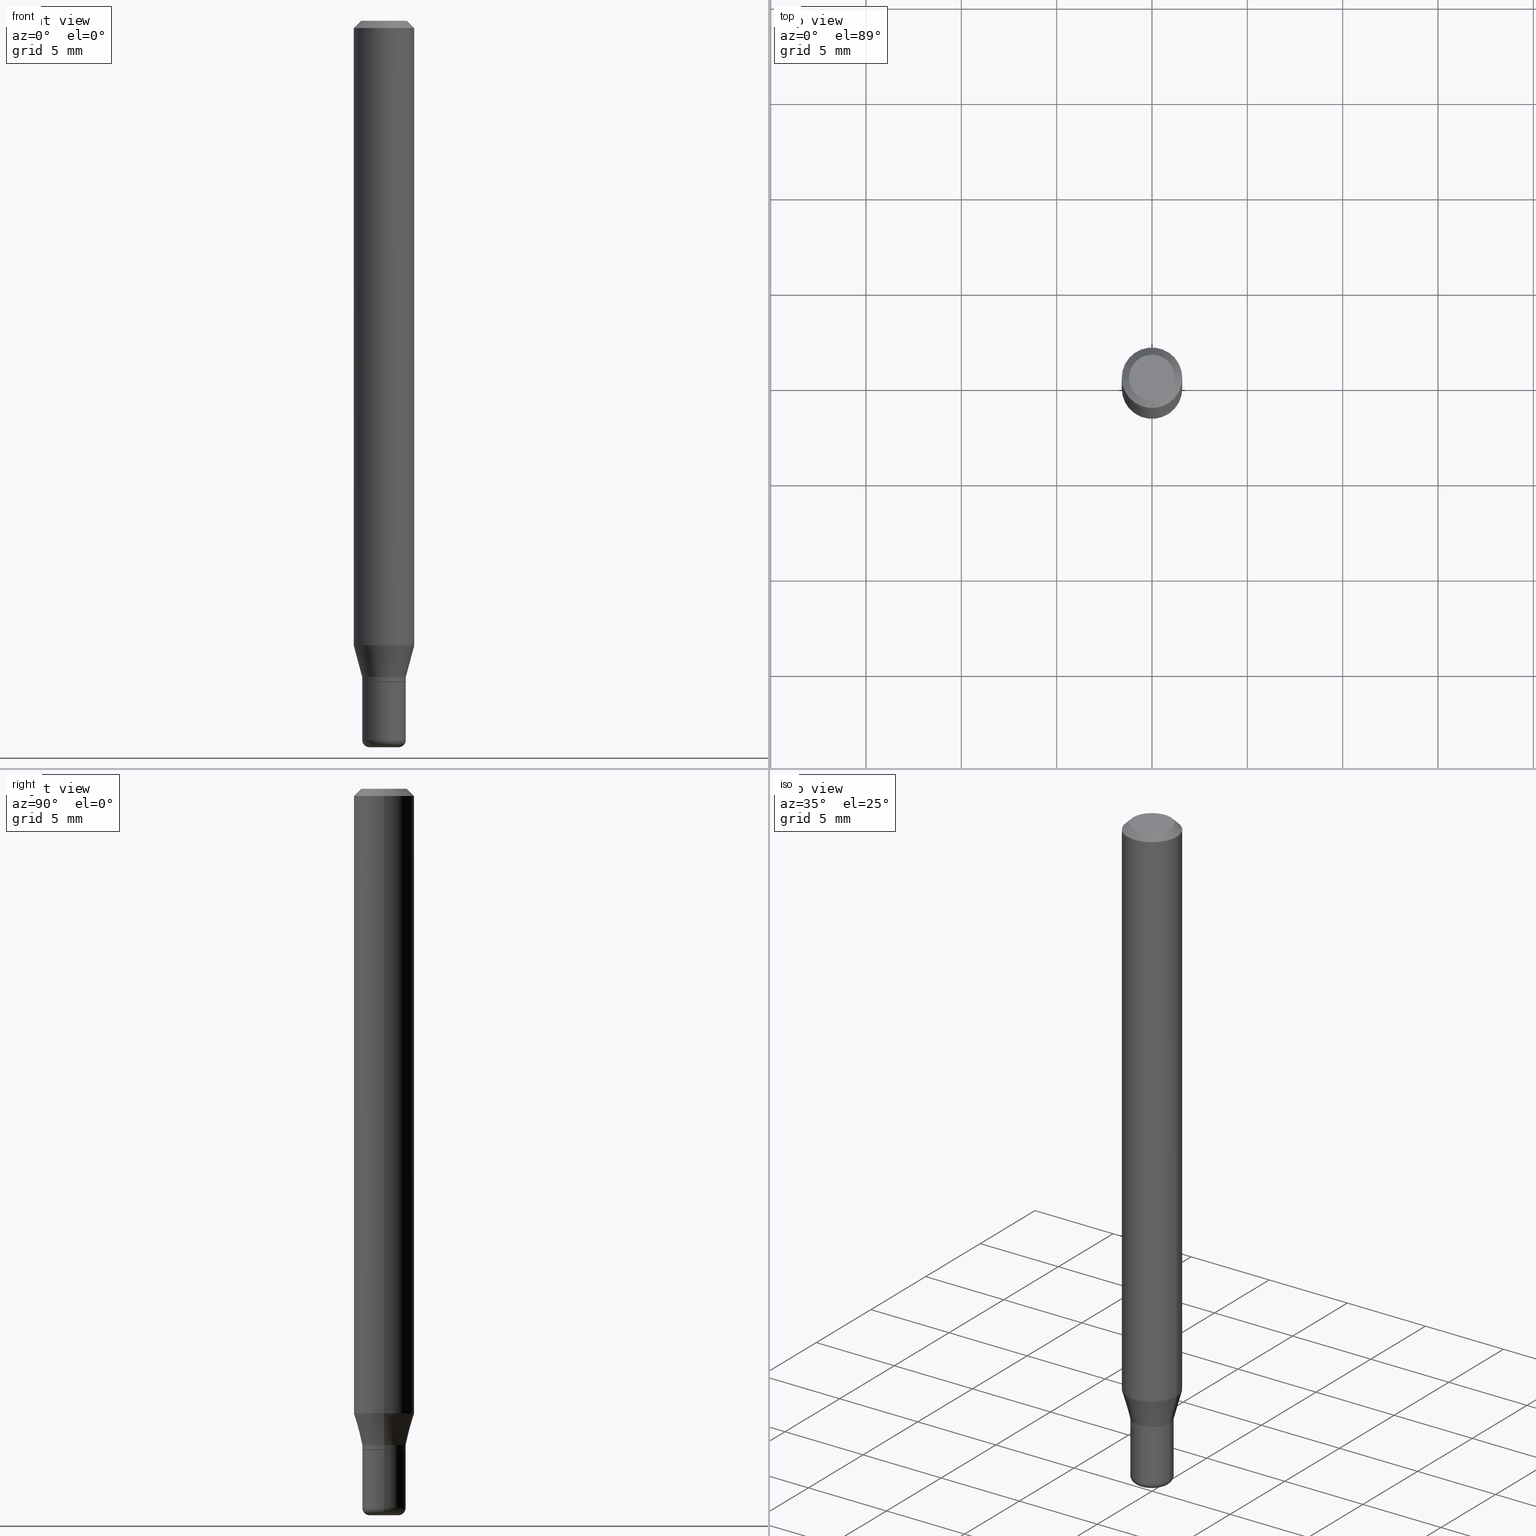
[diagram: canonical four-view strip — front | top / right | iso, engineering-drawing reading convention]
A machine part, canonical four-view strip (front | top / right | iso — engineering-drawing reading convention). The complete STEP part file that produces these views, byte-faithful:
ISO-10303-21;
HEADER;
FILE_DESCRIPTION (( 'STEP AP203' ),
    '1' );
FILE_NAME ('09064.STEP',
    '2024-02-29T21:45:32',
    ( '' ),
    ( '' ),
    'SwSTEP 2.0',
    'SolidWorks 2023',
    '' );
FILE_SCHEMA (( 'CONFIG_CONTROL_DESIGN' ));
ENDSEC;

DATA;
#1 = EDGE_CURVE ( 'NONE', #494, #511, #70, .T. ) ;
#2 = DIRECTION ( 'NONE',  ( -2.445468806185136597E-29, 3.491481338843145583E-15, 1.000000000000000000 ) ) ;
#3 = DIRECTION ( 'NONE',  ( 1.000000000000000000, -6.982962677686274599E-15, 0.000000000000000000 ) ) ;
#4 = CARTESIAN_POINT ( 'NONE',  ( -6.680649051745406845E-45, 9.538196290434862081E-31, 2.731847993664263218E-16 ) ) ;
#5 = LINE ( 'NONE', #478, #329 ) ;
#6 = CIRCLE ( 'NONE', #260, 0.01499999999999998557 ) ;
#7 = CC_DESIGN_APPROVAL ( #154, ( #293 ) ) ;
#8 = DIRECTION ( 'NONE',  ( 1.000000000000000000, -6.982962677686266711E-15, 0.000000000000000000 ) ) ;
#9 = CARTESIAN_POINT ( 'NONE',  ( 0.000000000000000000, 0.000000000000000000, 0.000000000000000000 ) ) ;
#10 = DIRECTION ( 'NONE',  ( -2.445468806185136877E-29, 3.491481338843145188E-15, 1.000000000000000000 ) ) ;
#11 = CC_DESIGN_PERSON_AND_ORGANIZATION_ASSIGNMENT ( #471, #350, ( #293 ) ) ;
#12 = TOROIDAL_SURFACE ( 'NONE', #514, 0.02999999999999999542, 0.01499999999999998904 ) ;
#13 = LENGTH_MEASURE_WITH_UNIT ( LENGTH_MEASURE( 0.02539999999999999897 ), #286 );
#14 = DIRECTION ( 'NONE',  ( 1.000000000000000000, -6.982962677686269077E-15, 0.000000000000000000 ) ) ;
#15 = APPLICATION_PROTOCOL_DEFINITION ( 'international standard', 'config_control_design', 1994, #138 ) ;
#16 = EDGE_CURVE ( 'NONE', #386, #494, #325, .T. ) ;
#17 = ORIENTED_EDGE ( 'NONE', *, *, #481, .T. ) ;
#18 = ORIENTED_EDGE ( 'NONE', *, *, #229, .F. ) ;
#19 = PLANE ( 'NONE',  #394 ) ;
#20 = CC_DESIGN_PERSON_AND_ORGANIZATION_ASSIGNMENT ( #302, #180, ( #58 ) ) ;
#21 = CALENDAR_DATE ( 2024, 29, 2 ) ;
#22 = FACE_OUTER_BOUND ( 'NONE', #112, .T. ) ;
#23 = CIRCLE ( 'NONE', #88, 0.06250000000000000000 ) ;
#24 = DIRECTION ( 'NONE',  ( -2.445468806185136597E-29, 3.491481338843145583E-15, 1.000000000000000000 ) ) ;
#25 = CIRCLE ( 'NONE', #385, 0.04499999999999998446 ) ;
#26 = DATE_TIME_ROLE ( 'classification_date' ) ;
#27 = ORIENTED_EDGE ( 'NONE', *, *, #273, .F. ) ;
#28 = CARTESIAN_POINT ( 'NONE',  ( 3.338064920442711836E-29, -4.765872027520893280E-15, -1.364999999999999991 ) ) ;
#29 = DIRECTION ( 'NONE',  ( -2.445468806185136597E-29, 3.491481338843145583E-15, 1.000000000000000000 ) ) ;
#30 = CALENDAR_DATE ( 2024, 29, 2 ) ;
#31 = DIRECTION ( 'NONE',  ( 1.000000000000000000, -6.982962677686265922E-15, 4.876176775795935793E-29 ) ) ;
#32 = ORIENTED_EDGE ( 'NONE', *, *, #281, .F. ) ;
#33 = LINE ( 'NONE', #466, #366 ) ;
#34 = AXIS2_PLACEMENT_3D ( 'NONE', #429, #270, #186 ) ;
#35 = APPROVAL_PERSON_ORGANIZATION ( #136, #370, #502 ) ;
#36 = DIRECTION ( 'NONE',  ( 1.000000000000000000, -6.982962677686270655E-15, 0.000000000000000000 ) ) ;
#37 = ADVANCED_FACE ( 'NONE', ( #205 ), #282, .T. ) ;
#38 = DIRECTION ( 'NONE',  ( 1.000000000000000000, -6.982962677686269866E-15, 0.000000000000000000 ) ) ;
#39 = ORIENTED_EDGE ( 'NONE', *, *, #114, .F. ) ;
#40 = ADVANCED_BREP_SHAPE_REPRESENTATION ( '09064', ( #362, #190, #218 ), #193 ) ;
#41 = DIRECTION ( 'NONE',  ( 0.2588190451025211281, 1.565188264969623940E-15, 0.9659258262890682012 ) ) ;
#42 = CARTESIAN_POINT ( 'NONE',  ( -0.04449999999999999095, -4.449680510107648811E-15, -1.364999999999999991 ) ) ;
#43 = AXIS2_PLACEMENT_3D ( 'NONE', #159, #368, #371 ) ;
#44 = CONICAL_SURFACE ( 'NONE', #43, 0.04449999999999999095, 0.7853981633975507526 ) ;
#45 = CARTESIAN_POINT ( 'NONE',  ( 3.313610232380860851E-29, -4.730957214132463209E-15, -1.355000000000000204 ) ) ;
#46 = ORIENTED_EDGE ( 'NONE', *, *, #426, .T. ) ;
#47 = CARTESIAN_POINT ( 'NONE',  ( 0.06250000000000000000, -4.811533449433669144E-16, -0.01499999999999970281 ) ) ;
#48 = CYLINDRICAL_SURFACE ( 'NONE', #374, 0.04499999999999999833 ) ;
#49 = VECTOR ( 'NONE', #208, 39.37007874015748143 ) ;
#50 = DIRECTION ( 'NONE',  ( 2.438088387897960049E-29, -3.491481338843145188E-15, -1.000000000000000000 ) ) ;
#51 = EDGE_CURVE ( 'NONE', #342, #346, #447, .T. ) ;
#52 = MECHANICAL_CONTEXT ( 'NONE', #138, 'mechanical' ) ;
#53 = DIRECTION ( 'NONE',  ( 1.000000000000000000, -6.982962677686266711E-15, 4.852736867747365086E-29 ) ) ;
#54 = VERTEX_POINT ( 'NONE', #332 ) ;
#55 = ORGANIZATION ( 'UNSPECIFIED', 'UNSPECIFIED', '' ) ;
#56 = DATE_AND_TIME ( #338, #74 ) ;
#57 = EDGE_LOOP ( 'NONE', ( #432, #194, #458, #359 ) ) ;
#58 = PRODUCT_DEFINITION ( 'UNKNOWN', '', #293, #118 ) ;
#59 = FACE_OUTER_BOUND ( 'NONE', #308, .T. ) ;
#60 = EDGE_LOOP ( 'NONE', ( #335, #17, #475, #18 ) ) ;
#61 = DIRECTION ( 'NONE',  ( -2.445468806185136597E-29, 3.491481338843145583E-15, 1.000000000000000000 ) ) ;
#62 = VERTEX_POINT ( 'NONE', #219 ) ;
#63 = VECTOR ( 'NONE', #10, 39.37007874015748143 ) ;
#64 = DIRECTION ( 'NONE',  ( -2.445468806185136597E-29, 3.491481338843145583E-15, 1.000000000000000000 ) ) ;
#65 = CIRCLE ( 'NONE', #117, 0.06250000000000000000 ) ;
#66 = ADVANCED_FACE ( 'NONE', ( #508 ), #365, .T. ) ;
#67 = CARTESIAN_POINT ( 'NONE',  ( 0.000000000000000000, 0.000000000000000000, 0.000000000000000000 ) ) ;
#68 = ADVANCED_FACE ( 'NONE', ( #341 ), #235, .F. ) ;
#69 = APPROVAL_STATUS ( 'not_yet_approved' ) ;
#70 = LINE ( 'NONE', #321, #237 ) ;
#71 = ADVANCED_FACE ( 'NONE', ( #423 ), #489, .T. ) ;
#72 = CIRCLE ( 'NONE', #82, 0.04499999999999999140 ) ;
#73 = ORIENTED_EDGE ( 'NONE', *, *, #105, .T. ) ;
#74 = LOCAL_TIME ( 16, 45, 32.00000000000000000, #184 ) ;
#75 = DIRECTION ( 'NONE',  ( 1.000000000000000000, -6.982962677686266711E-15, 4.876176775795935793E-29 ) ) ;
#76 = PRODUCT_RELATED_PRODUCT_CATEGORY ( 'detail', '', ( #353 ) ) ;
#77 = DIRECTION ( 'NONE',  ( -1.000000000000000000, 6.982962677686265922E-15, -4.876176775795935793E-29 ) ) ;
#78 = EDGE_CURVE ( 'NONE', #433, #153, #6, .T. ) ;
#79 = DIRECTION ( 'NONE',  ( 1.000000000000000000, -6.982962677686269866E-15, 0.000000000000000000 ) ) ;
#80 = FACE_OUTER_BOUND ( 'NONE', #427, .T. ) ;
#81 = CARTESIAN_POINT ( 'NONE',  ( -6.680649051745406845E-45, 9.538196290434862081E-31, 2.731847993664263218E-16 ) ) ;
#82 = AXIS2_PLACEMENT_3D ( 'NONE', #122, #83, #79 ) ;
#83 = DIRECTION ( 'NONE',  ( -2.445468806185136597E-29, 3.491481338843145583E-15, 1.000000000000000000 ) ) ;
#84 = AXIS2_PLACEMENT_3D ( 'NONE', #326, #487, #313 ) ;
#85 = PRODUCT_DEFINITION_SHAPE ( 'NONE', 'NONE',  #58 ) ;
#86 = CARTESIAN_POINT ( 'NONE',  ( 3.142333204959153116E-16, 0.04499999999999523131, -1.365000000000000435 ) ) ;
#87 = ORIENTED_EDGE ( 'NONE', *, *, #318, .T. ) ;
#88 = AXIS2_PLACEMENT_3D ( 'NONE', #364, #480, #210 ) ;
#89 = CARTESIAN_POINT ( 'NONE',  ( 0.06250000000000000000, -4.939360630858633822E-15, -1.289689110867545008 ) ) ;
#90 = DIRECTION ( 'NONE',  ( 1.000000000000000000, -6.982962677686265922E-15, 4.876176775795935793E-29 ) ) ;
#91 = EDGE_LOOP ( 'NONE', ( #230, #96, #224, #380 ) ) ;
#92 = ADVANCED_FACE ( 'NONE', ( #316 ), #291, .T. ) ;
#93 =( CONVERSION_BASED_UNIT ( 'INCH', #13 ) LENGTH_UNIT ( ) NAMED_UNIT ( #396 ) );
#94 = CARTESIAN_POINT ( 'NONE',  ( 0.000000000000000000, 0.000000000000000000, 0.000000000000000000 ) ) ;
#95 = CC_DESIGN_PERSON_AND_ORGANIZATION_ASSIGNMENT ( #156, #501, ( #293 ) ) ;
#96 = ORIENTED_EDGE ( 'NONE', *, *, #161, .T. ) ;
#97 = PERSON_AND_ORGANIZATION ( #391, #55 ) ;
#98 = VECTOR ( 'NONE', #311, 39.37007874015748143 ) ;
#99 = VERTEX_POINT ( 'NONE', #440 ) ;
#100 = ORIENTED_EDGE ( 'NONE', *, *, #207, .F. ) ;
#101 = EDGE_LOOP ( 'NONE', ( #150, #504, #32, #266 ) ) ;
#102 = ORIENTED_EDGE ( 'NONE', *, *, #78, .F. ) ;
#103 = ORIENTED_EDGE ( 'NONE', *, *, #490, .T. ) ;
#104 = DIRECTION ( 'NONE',  ( 1.000000000000000000, -6.982962677686271444E-15, 4.883557194083114583E-29 ) ) ;
#105 = EDGE_CURVE ( 'NONE', #424, #285, #303, .T. ) ;
#106 = AXIS2_PLACEMENT_3D ( 'NONE', #484, #124, #3 ) ;
#107 = EDGE_CURVE ( 'NONE', #99, #486, #23, .T. ) ;
#108 = CARTESIAN_POINT ( 'NONE',  ( 0.04499999999999998446, -5.499083108677953967E-15, -1.485000000000000098 ) ) ;
#109 = DIRECTION ( 'NONE',  ( -2.445468806185136597E-29, 3.491481338843145583E-15, 1.000000000000000000 ) ) ;
#110 = DIRECTION ( 'NONE',  ( -2.445468806185136597E-29, 3.491481338843145583E-15, 1.000000000000000000 ) ) ;
#111 = DIRECTION ( 'NONE',  ( -2.445468806185136597E-29, 3.491481338843145583E-15, 1.000000000000000000 ) ) ;
#112 = EDGE_LOOP ( 'NONE', ( #126, #345 ) ) ;
#113 = COORDINATED_UNIVERSAL_TIME_OFFSET ( 5, 0, .BEHIND. ) ;
#114 = EDGE_CURVE ( 'NONE', #486, #424, #128, .T. ) ;
#115 = VECTOR ( 'NONE', #202, 39.37007874015748143 ) ;
#116 = ORIENTED_EDGE ( 'NONE', *, *, #259, .T. ) ;
#117 = AXIS2_PLACEMENT_3D ( 'NONE', #467, #420, #146 ) ;
#118 = DESIGN_CONTEXT ( 'detailed design', #461, 'design' ) ;
#119 = CARTESIAN_POINT ( 'NONE',  ( 3.631521177184928138E-29, -5.184849788182071492E-15, -1.485000000000000098 ) ) ;
#120 = EDGE_CURVE ( 'NONE', #153, #421, #5, .T. ) ;
#121 = CARTESIAN_POINT ( 'NONE',  ( 3.631521177184928138E-29, -5.184849788182071492E-15, -1.485000000000000098 ) ) ;
#122 = CARTESIAN_POINT ( 'NONE',  ( 3.336842186039619034E-29, -4.764126286851473355E-15, -1.364500000000000046 ) ) ;
#123 = DIRECTION ( 'NONE',  ( -0.7071067811866199593, 7.493145998870616062E-15, 0.7071067811864750752 ) ) ;
#124 = DIRECTION ( 'NONE',  ( -6.982962677686266711E-15, -1.000000000000000000, 3.491481338843145583E-15 ) ) ;
#125 = EDGE_CURVE ( 'NONE', #62, #494, #72, .T. ) ;
#126 = ORIENTED_EDGE ( 'NONE', *, *, #259, .F. ) ;
#127 = DIRECTION ( 'NONE',  ( 1.000000000000000000, -6.982962677686266711E-15, 4.876176775795935793E-29 ) ) ;
#128 = LINE ( 'NONE', #320, #63 ) ;
#129 = DIRECTION ( 'NONE',  ( -2.445468806185136597E-29, 3.491481338843145583E-15, 1.000000000000000000 ) ) ;
#130 = LINE ( 'NONE', #214, #262 ) ;
#131 = AXIS2_PLACEMENT_3D ( 'NONE', #94, #29, #290 ) ;
#132 = DIRECTION ( 'NONE',  ( -2.445468806185136597E-29, 3.491481338843145583E-15, 1.000000000000000000 ) ) ;
#133 = EDGE_LOOP ( 'NONE', ( #497, #334, #73, #417 ) ) ;
#134 = CARTESIAN_POINT ( 'NONE',  ( 3.668203209277704895E-29, -5.237222008264718177E-15, -1.500000000000000222 ) ) ;
#135 = CC_DESIGN_PERSON_AND_ORGANIZATION_ASSIGNMENT ( #453, #414, ( #349 ) ) ;
#136 = PERSON_AND_ORGANIZATION ( #391, #55 ) ;
#137 = ORIENTED_EDGE ( 'NONE', *, *, #149, .F. ) ;
#138 = APPLICATION_CONTEXT ( 'configuration controlled 3d designs of mechanical parts and assemblies' ) ;
#139 = VERTEX_POINT ( 'NONE', #164 ) ;
#140 = CIRCLE ( 'NONE', #106, 0.01499999999999998557 ) ;
#141 = CC_DESIGN_SECURITY_CLASSIFICATION ( #349, ( #293 ) ) ;
#142 = EDGE_CURVE ( 'NONE', #309, #54, #488, .T. ) ;
#143 = DIRECTION ( 'NONE',  ( 1.000000000000000000, -6.982962677686267499E-15, 0.000000000000000000 ) ) ;
#144 = DIRECTION ( 'NONE',  ( -2.438088387897960049E-29, 3.491481338843145188E-15, 1.000000000000000000 ) ) ;
#145 = EDGE_LOOP ( 'NONE', ( #509, #158, #462, #39 ) ) ;
#146 = DIRECTION ( 'NONE',  ( 1.000000000000000000, -6.982962677686262766E-15, 0.000000000000000000 ) ) ;
#147 = DIRECTION ( 'NONE',  ( 1.000000000000000000, -6.982962677686267499E-15, 0.000000000000000000 ) ) ;
#148 = CIRCLE ( 'NONE', #500, 0.04500000000000000527 ) ;
#149 = EDGE_CURVE ( 'NONE', #139, #309, #140, .T. ) ;
#150 = ORIENTED_EDGE ( 'NONE', *, *, #463, .T. ) ;
#151 = CALENDAR_DATE ( 2024, 29, 2 ) ;
#152 = DIRECTION ( 'NONE',  ( -1.000000000000000000, 7.105427357600997914E-15, 0.000000000000000000 ) ) ;
#153 = VERTEX_POINT ( 'NONE', #518 ) ;
#154 = APPROVAL ( #69, 'UNSPECIFIED' ) ;
#155 = ORIENTED_EDGE ( 'NONE', *, *, #107, .T. ) ;
#156 = PERSON_AND_ORGANIZATION ( #391, #55 ) ;
#157 = LINE ( 'NONE', #450, #98 ) ;
#158 = ORIENTED_EDGE ( 'NONE', *, *, #431, .T. ) ;
#159 = CARTESIAN_POINT ( 'NONE',  ( 3.338064920442711836E-29, -4.765872027520893280E-15, -1.364999999999999991 ) ) ;
#160 = CIRCLE ( 'NONE', #254, 0.06250000000000000000 ) ;
#161 = EDGE_CURVE ( 'NONE', #178, #62, #280, .T. ) ;
#162 = DIRECTION ( 'NONE',  ( -2.445468806185136597E-29, 3.491481338843145583E-15, 1.000000000000000000 ) ) ;
#163 = DIRECTION ( 'NONE',  ( 1.000000000000000000, -6.982962677686266711E-15, 4.876176775795935793E-29 ) ) ;
#164 = CARTESIAN_POINT ( 'NONE',  ( 0.02999999999999999889, -5.446710888595306494E-15, -1.500000000000000222 ) ) ;
#165 = FACE_OUTER_BOUND ( 'NONE', #495, .T. ) ;
#166 = AXIS2_PLACEMENT_3D ( 'NONE', #301, #305, #296 ) ;
#167 = FACE_OUTER_BOUND ( 'NONE', #498, .T. ) ;
#168 = EDGE_CURVE ( 'NONE', #342, #285, #240, .T. ) ;
#169 = DIRECTION ( 'NONE',  ( -2.445468806185136597E-29, 3.491481338843145583E-15, 1.000000000000000000 ) ) ;
#170 =( NAMED_UNIT ( * ) PLANE_ANGLE_UNIT ( ) SI_UNIT ( $, .RADIAN. ) );
#171 = DIRECTION ( 'NONE',  ( 2.445468806185136597E-29, -3.491481338843145583E-15, -1.000000000000000000 ) ) ;
#172 = FACE_OUTER_BOUND ( 'NONE', #60, .T. ) ;
#173 = ADVANCED_FACE ( 'NONE', ( #244 ), #241, .T. ) ;
#174 = CARTESIAN_POINT ( 'NONE',  ( 0.04499999999999999140, -5.078359607347354252E-15, -1.364500000000000046 ) ) ;
#175 = DIRECTION ( 'NONE',  ( -1.000000000000000000, 6.982962677686266711E-15, 0.000000000000000000 ) ) ;
#176 = AXIS2_PLACEMENT_3D ( 'NONE', #444, #129, #163 ) ;
#177 = APPROVAL_PERSON_ORGANIZATION ( #336, #154, #418 ) ;
#178 = VERTEX_POINT ( 'NONE', #443 ) ;
#179 = CARTESIAN_POINT ( 'NONE',  ( 3.313610232380860851E-29, -4.730957214132463209E-15, -1.355000000000000204 ) ) ;
#180 = PERSON_AND_ORGANIZATION_ROLE ( 'creator' ) ;
#181 = ORIENTED_EDGE ( 'NONE', *, *, #401, .T. ) ;
#182 = CIRCLE ( 'NONE', #441, 0.04499999999999999833 ) ;
#183 = CARTESIAN_POINT ( 'NONE',  ( 3.631521177184928138E-29, -5.184849788182071492E-15, -1.485000000000000098 ) ) ;
#184 = COORDINATED_UNIVERSAL_TIME_OFFSET ( 5, 0, .BEHIND. ) ;
#185 = CYLINDRICAL_SURFACE ( 'NONE', #250, 0.04499999999999999140 ) ;
#186 = DIRECTION ( 'NONE',  ( -1.000000000000000000, 6.982962677686266711E-15, 0.000000000000000000 ) ) ;
#187 = APPROVAL_DATE_TIME ( #56, #370 ) ;
#188 = CARTESIAN_POINT ( 'NONE',  ( 3.668203209277704895E-29, -5.237222008264718177E-15, -1.500000000000000222 ) ) ;
#189 = EDGE_CURVE ( 'NONE', #346, #342, #499, .T. ) ;
#190 = MANIFOLD_SOLID_BREP ( 'Body-Move/Copy2[2]', #275 ) ;
#191 = CARTESIAN_POINT ( 'NONE',  ( -0.04750000000000000749, 3.578768372314221353E-16, 2.731847993664239060E-16 ) ) ;
#192 = AXIS2_PLACEMENT_3D ( 'NONE', #45, #206, #327 ) ;
#193 =( GEOMETRIC_REPRESENTATION_CONTEXT ( 3 ) GLOBAL_UNCERTAINTY_ASSIGNED_CONTEXT ( ( #220 ) ) GLOBAL_UNIT_ASSIGNED_CONTEXT ( ( #93, #170, #253 ) ) REPRESENTATION_CONTEXT ( 'NONE', 'WORKASPACE' ) );
#194 = ORIENTED_EDGE ( 'NONE', *, *, #125, .T. ) ;
#195 = CARTESIAN_POINT ( 'NONE',  ( 0.04449999999999999095, -5.076613866677931960E-15, -1.364999999999999991 ) ) ;
#196 = DIRECTION ( 'NONE',  ( -2.445468806185136597E-29, 3.491481338843145583E-15, 1.000000000000000000 ) ) ;
#197 = EDGE_LOOP ( 'NONE', ( #274, #496 ) ) ;
#198 = PLANE ( 'NONE',  #515 ) ;
#199 = ADVANCED_FACE ( 'NONE', ( #165 ), #367, .F. ) ;
#200 = DIRECTION ( 'NONE',  ( -2.445468806185136597E-29, 3.491481338843145583E-15, 1.000000000000000000 ) ) ;
#201 = LOCAL_TIME ( 16, 45, 32.00000000000000000, #113 ) ;
#202 = DIRECTION ( 'NONE',  ( -2.445468806185136877E-29, 3.491481338843145188E-15, 1.000000000000000000 ) ) ;
#203 = EDGE_CURVE ( 'NONE', #346, #424, #446, .T. ) ;
#204 = DIRECTION ( 'NONE',  ( -2.445468806185136877E-29, 3.491481338843145188E-15, 1.000000000000000000 ) ) ;
#205 = FACE_OUTER_BOUND ( 'NONE', #133, .T. ) ;
#206 = DIRECTION ( 'NONE',  ( -2.445468806185136597E-29, 3.491481338843145583E-15, 1.000000000000000000 ) ) ;
#207 = EDGE_CURVE ( 'NONE', #285, #424, #160, .T. ) ;
#208 = DIRECTION ( 'NONE',  ( 0.7071067811865479058, -7.319954787623257623E-15, -0.7071067811865471286 ) ) ;
#209 = VECTOR ( 'NONE', #399, 39.37007874015748143 ) ;
#210 = DIRECTION ( 'NONE',  ( 1.000000000000000000, -6.982962677686262766E-15, 0.000000000000000000 ) ) ;
#211 = TOROIDAL_SURFACE ( 'NONE', #357, 0.02999999999999999542, 0.01499999999999998904 ) ;
#212 = EDGE_LOOP ( 'NONE', ( #102, #103, #312, #436 ) ) ;
#213 = DIRECTION ( 'NONE',  ( 0.7071067811866199593, -2.468850131083015945E-15, 0.7071067811864750752 ) ) ;
#214 = CARTESIAN_POINT ( 'NONE',  ( 0.04500000000000000527, -5.045190534628344896E-15, -1.355000000000000204 ) ) ;
#215 = ORIENTED_EDGE ( 'NONE', *, *, #120, .T. ) ;
#216 = DIRECTION ( 'NONE',  ( 1.000000000000000000, -6.982962677686270655E-15, 0.000000000000000000 ) ) ;
#217 = CIRCLE ( 'NONE', #507, 0.04500000000000000527 ) ;
#218 = AXIS2_PLACEMENT_3D ( 'NONE', #412, #288, #410 ) ;
#219 = CARTESIAN_POINT ( 'NONE',  ( -0.04499999999999999140, -4.444382055759426409E-15, -1.364500000000000046 ) ) ;
#220 = UNCERTAINTY_MEASURE_WITH_UNIT (LENGTH_MEASURE( 1.000000000000000082E-05 ), #93, 'distance_accuracy_value', 'NONE');
#221 = CARTESIAN_POINT ( 'NONE',  ( 3.316907271900976589E-16, 0.04750000000000000749, -2.925296391183627249E-17 ) ) ;
#222 = ADVANCED_FACE ( 'NONE', ( #167 ), #12, .T. ) ;
#223 = DIRECTION ( 'NONE',  ( 1.000000000000000000, -6.982962677686269077E-15, 0.000000000000000000 ) ) ;
#224 = ORIENTED_EDGE ( 'NONE', *, *, #463, .F. ) ;
#225 = ORIENTED_EDGE ( 'NONE', *, *, #207, .T. ) ;
#226 = VERTEX_POINT ( 'NONE', #479 ) ;
#227 = CIRCLE ( 'NONE', #373, 0.04499999999999999833 ) ;
#228 = CIRCLE ( 'NONE', #408, 0.02999999999999999889 ) ;
#229 = EDGE_CURVE ( 'NONE', #421, #54, #227, .T. ) ;
#230 = ORIENTED_EDGE ( 'NONE', *, *, #468, .T. ) ;
#231 = COORDINATED_UNIVERSAL_TIME_OFFSET ( 5, 0, .BEHIND. ) ;
#232 = ORIENTED_EDGE ( 'NONE', *, *, #229, .T. ) ;
#233 = CC_DESIGN_PERSON_AND_ORGANIZATION_ASSIGNMENT ( #452, #252, ( #353 ) ) ;
#234 = FACE_OUTER_BOUND ( 'NONE', #212, .T. ) ;
#235 = PLANE ( 'NONE',  #249 ) ;
#236 = CARTESIAN_POINT ( 'NONE',  ( 3.631521177184928138E-29, -5.184849788182071492E-15, -1.485000000000000098 ) ) ;
#237 = VECTOR ( 'NONE', #204, 39.37007874015748143 ) ;
#238 = LOCAL_TIME ( 16, 45, 32.00000000000000000, #428 ) ;
#239 = CARTESIAN_POINT ( 'NONE',  ( 3.336842186039619034E-29, -4.764126286851473355E-15, -1.364500000000000046 ) ) ;
#240 = LINE ( 'NONE', #278, #209 ) ;
#241 = CYLINDRICAL_SURFACE ( 'NONE', #176, 0.06250000000000000000 ) ;
#242 = DIRECTION ( 'NONE',  ( -2.438088387897960049E-29, 3.491481338843145188E-15, 1.000000000000000000 ) ) ;
#243 = CONICAL_SURFACE ( 'NONE', #434, 0.04449999999999999095, 0.7853981633975507526 ) ;
#244 = FACE_OUTER_BOUND ( 'NONE', #145, .T. ) ;
#245 = DIRECTION ( 'NONE',  ( 1.000000000000000000, -6.982962677686266711E-15, 4.852736867747365086E-29 ) ) ;
#246 = DIRECTION ( 'NONE',  ( 1.000000000000000000, -6.982962677686266711E-15, 0.000000000000000000 ) ) ;
#247 = CARTESIAN_POINT ( 'NONE',  ( 3.668203209277632395E-31, -5.237222008264614861E-17, -0.01499999999999970281 ) ) ;
#248 = ORIENTED_EDGE ( 'NONE', *, *, #284, .F. ) ;
#249 = AXIS2_PLACEMENT_3D ( 'NONE', #503, #144, #31 ) ;
#250 = AXIS2_PLACEMENT_3D ( 'NONE', #67, #425, #339 ) ;
#251 = CARTESIAN_POINT ( 'NONE',  ( 0.06250000000000000000, -4.888073874380378612E-16, -0.01499999999999970281 ) ) ;
#252 = PERSON_AND_ORGANIZATION_ROLE ( 'design_owner' ) ;
#253 =( NAMED_UNIT ( * ) SI_UNIT ( $, .STERADIAN. ) SOLID_ANGLE_UNIT ( ) );
#254 = AXIS2_PLACEMENT_3D ( 'NONE', #358, #2, #8 ) ;
#255 = LOCAL_TIME ( 16, 45, 32.00000000000000000, #289 ) ;
#256 = ORIENTED_EDGE ( 'NONE', *, *, #78, .T. ) ;
#257 = ADVANCED_FACE ( 'NONE', ( #456 ), #445, .T. ) ;
#258 = APPROVAL_DATE_TIME ( #299, #465 ) ;
#259 = EDGE_CURVE ( 'NONE', #139, #433, #406, .T. ) ;
#260 = AXIS2_PLACEMENT_3D ( 'NONE', #265, #392, #152 ) ;
#261 = AXIS2_PLACEMENT_3D ( 'NONE', #81, #363, #53 ) ;
#262 = VECTOR ( 'NONE', #41, 39.37007874015748143 ) ;
#263 = FACE_OUTER_BOUND ( 'NONE', #454, .T. ) ;
#264 = DATE_TIME_ROLE ( 'creation_date' ) ;
#265 = CARTESIAN_POINT ( 'NONE',  ( -0.02999999999999999542, -4.971686967454042036E-15, -1.485000000000000098 ) ) ;
#266 = ORIENTED_EDGE ( 'NONE', *, *, #1, .F. ) ;
#267 = CARTESIAN_POINT ( 'NONE',  ( 0.000000000000000000, 0.000000000000000000, 0.000000000000000000 ) ) ;
#268 = AXIS2_PLACEMENT_3D ( 'NONE', #4, #200, #245 ) ;
#269 = ORIENTED_EDGE ( 'NONE', *, *, #401, .F. ) ;
#270 = DIRECTION ( 'NONE',  ( 2.445468806185136597E-29, -3.491481338843145583E-15, -1.000000000000000000 ) ) ;
#271 = CARTESIAN_POINT ( 'NONE',  ( -0.04499999999999999833, -4.655616676759437807E-15, -1.364999999999999991 ) ) ;
#272 = CARTESIAN_POINT ( 'NONE',  ( -0.06250000000000000000, 4.440892098500626162E-16, -3.074334431409316114E-30 ) ) ;
#273 = EDGE_CURVE ( 'NONE', #54, #421, #182, .T. ) ;
#274 = ORIENTED_EDGE ( 'NONE', *, *, #468, .F. ) ;
#275 = CLOSED_SHELL ( 'NONE', ( #448, #354, #37, #173, #92, #71, #437, #66, #512, #68, #439, #257 ) ) ;
#276 = LOCAL_TIME ( 16, 45, 32.00000000000000000, #231 ) ;
#277 = DIRECTION ( 'NONE',  ( 2.438088387897960049E-29, -3.491481338843145188E-15, -1.000000000000000000 ) ) ;
#278 = CARTESIAN_POINT ( 'NONE',  ( -0.06250000000000000000, 3.840629472727455270E-16, -0.01499999999999970281 ) ) ;
#279 = DIRECTION ( 'NONE',  ( -2.445468806185136597E-29, 3.491481338843145583E-15, 1.000000000000000000 ) ) ;
#280 = LINE ( 'NONE', #42, #384 ) ;
#281 = EDGE_CURVE ( 'NONE', #511, #226, #217, .T. ) ;
#282 = CONICAL_SURFACE ( 'NONE', #492, 0.06250000000000000000, 0.7853981633974488341 ) ;
#283 = APPROVAL_PERSON_ORGANIZATION ( #97, #465, #389 ) ;
#284 = EDGE_CURVE ( 'NONE', #486, #99, #65, .T. ) ;
#285 = VERTEX_POINT ( 'NONE', #379 ) ;
#286 =( LENGTH_UNIT ( ) NAMED_UNIT ( * ) SI_UNIT ( $, .METRE. ) );
#287 = CARTESIAN_POINT ( 'NONE',  ( 3.338064920442711836E-29, -4.765872027520893280E-15, -1.364999999999999991 ) ) ;
#288 = DIRECTION ( 'NONE',  ( 0.000000000000000000, 0.000000000000000000, 1.000000000000000000 ) ) ;
#289 = COORDINATED_UNIVERSAL_TIME_OFFSET ( 5, 0, .BEHIND. ) ;
#290 = DIRECTION ( 'NONE',  ( 1.000000000000000000, -6.982962677686266711E-15, 4.876176775795935793E-29 ) ) ;
#291 = CONICAL_SURFACE ( 'NONE', #192, 0.04500000000000000527, 0.2617993877991497964 ) ;
#292 = EDGE_CURVE ( 'NONE', #226, #511, #148, .T. ) ;
#293 = PRODUCT_DEFINITION_FORMATION_WITH_SPECIFIED_SOURCE ( 'ANY', '', #353, .NOT_KNOWN. ) ;
#294 = ORIENTED_EDGE ( 'NONE', *, *, #292, .T. ) ;
#295 = CARTESIAN_POINT ( 'NONE',  ( 0.04750000000000000749, -4.035134999187568762E-16, 2.731847993664288856E-16 ) ) ;
#296 = DIRECTION ( 'NONE',  ( 1.000000000000000000, -6.982962677686258033E-15, 0.000000000000000000 ) ) ;
#297 = ORIENTED_EDGE ( 'NONE', *, *, #107, .F. ) ;
#298 = SHAPE_DEFINITION_REPRESENTATION ( #85, #40 ) ;
#299 = DATE_AND_TIME ( #21, #238 ) ;
#300 = ORIENTED_EDGE ( 'NONE', *, *, #203, .F. ) ;
#301 = CARTESIAN_POINT ( 'NONE',  ( 3.338064920442711836E-29, -4.765872027520893280E-15, -1.364999999999999991 ) ) ;
#302 = PERSON_AND_ORGANIZATION ( #391, #55 ) ;
#303 = CIRCLE ( 'NONE', #413, 0.06250000000000000000 ) ;
#304 = CIRCLE ( 'NONE', #415, 0.04499999999999998446 ) ;
#305 = DIRECTION ( 'NONE',  ( -2.445468806185136597E-29, 3.491481338843145583E-15, 1.000000000000000000 ) ) ;
#306 = ORIENTED_EDGE ( 'NONE', *, *, #383, .F. ) ;
#307 = APPROVAL_DATE_TIME ( #347, #154 ) ;
#308 = EDGE_LOOP ( 'NONE', ( #398, #411 ) ) ;
#309 = VERTEX_POINT ( 'NONE', #108 ) ;
#310 = ORIENTED_EDGE ( 'NONE', *, *, #281, .T. ) ;
#311 = DIRECTION ( 'NONE',  ( -0.2588190451025211281, 5.211531920934548675E-15, 0.9659258262890682012 ) ) ;
#312 = ORIENTED_EDGE ( 'NONE', *, *, #149, .T. ) ;
#313 = DIRECTION ( 'NONE',  ( 1.000000000000000000, -6.982962677686258033E-15, 0.000000000000000000 ) ) ;
#314 = AXIS2_PLACEMENT_3D ( 'NONE', #344, #506, #147 ) ;
#315 = VECTOR ( 'NONE', #510, 39.37007874015748143 ) ;
#316 = FACE_OUTER_BOUND ( 'NONE', #330, .T. ) ;
#317 = CYLINDRICAL_SURFACE ( 'NONE', #402, 0.06250000000000000000 ) ;
#318 = EDGE_CURVE ( 'NONE', #178, #386, #493, .T. ) ;
#319 = ORIENTED_EDGE ( 'NONE', *, *, #16, .T. ) ;
#320 = CARTESIAN_POINT ( 'NONE',  ( 0.06250000000000000000, -4.364351673553916694E-16, 3.047610484872459871E-30 ) ) ;
#321 = CARTESIAN_POINT ( 'NONE',  ( 0.04499999999999999833, -3.142333204958819823E-16, 2.194279549108170967E-30 ) ) ;
#322 = AXIS2_PLACEMENT_3D ( 'NONE', #188, #64, #460 ) ;
#323 = CC_DESIGN_APPROVAL ( #370, ( #349 ) ) ;
#324 = CARTESIAN_POINT ( 'NONE',  ( 0.04499999999999999140, -3.142333204958819329E-16, 2.194279549108170616E-30 ) ) ;
#325 = LINE ( 'NONE', #485, #348 ) ;
#326 = CARTESIAN_POINT ( 'NONE',  ( 3.338064920442711836E-29, -4.765872027520893280E-15, -1.364999999999999991 ) ) ;
#327 = DIRECTION ( 'NONE',  ( 1.000000000000000000, -6.982962677686267499E-15, 0.000000000000000000 ) ) ;
#328 = CYLINDRICAL_SURFACE ( 'NONE', #442, 0.04499999999999999140 ) ;
#329 = VECTOR ( 'NONE', #404, 39.37007874015748143 ) ;
#330 = EDGE_LOOP ( 'NONE', ( #310, #46, #248, #269 ) ) ;
#331 = CIRCLE ( 'NONE', #482, 0.04499999999999999140 ) ;
#332 = CARTESIAN_POINT ( 'NONE',  ( 0.04499999999999999833, -5.080105348016775756E-15, -1.364999999999999991 ) ) ;
#333 = ADVANCED_FACE ( 'NONE', ( #263 ), #185, .T. ) ;
#334 = ORIENTED_EDGE ( 'NONE', *, *, #203, .T. ) ;
#335 = ORIENTED_EDGE ( 'NONE', *, *, #120, .F. ) ;
#336 = PERSON_AND_ORGANIZATION ( #391, #55 ) ;
#337 = ORIENTED_EDGE ( 'NONE', *, *, #383, .T. ) ;
#338 = CALENDAR_DATE ( 2024, 29, 2 ) ;
#339 = DIRECTION ( 'NONE',  ( 1.000000000000000000, -6.982962677686266711E-15, 4.876176775795935793E-29 ) ) ;
#340 = DATE_AND_TIME ( #151, #201 ) ;
#341 = FACE_OUTER_BOUND ( 'NONE', #197, .T. ) ;
#342 = VERTEX_POINT ( 'NONE', #191 ) ;
#343 = EDGE_CURVE ( 'NONE', #62, #226, #33, .T. ) ;
#344 = CARTESIAN_POINT ( 'NONE',  ( 3.313610232380860851E-29, -4.730957214132463209E-15, -1.355000000000000204 ) ) ;
#345 = ORIENTED_EDGE ( 'NONE', *, *, #490, .F. ) ;
#346 = VERTEX_POINT ( 'NONE', #295 ) ;
#347 = DATE_AND_TIME ( #30, #276 ) ;
#348 = VECTOR ( 'NONE', #213, 39.37007874015748143 ) ;
#349 = SECURITY_CLASSIFICATION ( '', '', #451 ) ;
#350 = PERSON_AND_ORGANIZATION_ROLE ( 'creator' ) ;
#351 = ORIENTED_EDGE ( 'NONE', *, *, #142, .F. ) ;
#352 = DIRECTION ( 'NONE',  ( 1.000000000000000000, -6.982962677686266711E-15, 4.876176775795935793E-29 ) ) ;
#353 = PRODUCT ( '09064', '09064', '', ( #52 ) ) ;
#354 = ADVANCED_FACE ( 'NONE', ( #472 ), #243, .T. ) ;
#355 = LINE ( 'NONE', #272, #315 ) ;
#356 = CLOSED_SHELL ( 'NONE', ( #222, #333, #199, #477, #361, #388 ) ) ;
#357 = AXIS2_PLACEMENT_3D ( 'NONE', #183, #111, #104 ) ;
#358 = CARTESIAN_POINT ( 'NONE',  ( 3.668203209277632395E-31, -5.237222008264614861E-17, -0.01499999999999970281 ) ) ;
#359 = ORIENTED_EDGE ( 'NONE', *, *, #292, .F. ) ;
#360 = CARTESIAN_POINT ( 'NONE',  ( 3.668203209277632395E-31, -5.237222008264614861E-17, -0.01499999999999970281 ) ) ;
#361 = ADVANCED_FACE ( 'NONE', ( #234 ), #211, .T. ) ;
#362 = MANIFOLD_SOLID_BREP ( 'Body-Move/Copy2[1]', #356 ) ;
#363 = DIRECTION ( 'NONE',  ( -2.445468806185136597E-29, 3.491481338843145583E-15, 1.000000000000000000 ) ) ;
#364 = CARTESIAN_POINT ( 'NONE',  ( 3.153894490303225812E-29, -4.502925463503242152E-15, -1.289689110867545008 ) ) ;
#365 = CONICAL_SURFACE ( 'NONE', #34, 0.06250000000000000000, 0.7853981633974488341 ) ;
#366 = VECTOR ( 'NONE', #390, 39.37007874015748143 ) ;
#367 = PLANE ( 'NONE',  #470 ) ;
#368 = DIRECTION ( 'NONE',  ( -2.445468806185136597E-29, 3.491481338843145583E-15, 1.000000000000000000 ) ) ;
#369 = DIRECTION ( 'NONE',  ( 1.000000000000000000, -6.982962677686268288E-15, 0.000000000000000000 ) ) ;
#370 = APPROVAL ( #459, 'UNSPECIFIED' ) ;
#371 = DIRECTION ( 'NONE',  ( 1.000000000000000000, -6.982962677686258033E-15, 0.000000000000000000 ) ) ;
#372 = DIRECTION ( 'NONE',  ( -2.445468806185136597E-29, 3.491481338843145583E-15, 1.000000000000000000 ) ) ;
#373 = AXIS2_PLACEMENT_3D ( 'NONE', #287, #132, #14 ) ;
#374 = AXIS2_PLACEMENT_3D ( 'NONE', #9, #169, #352 ) ;
#375 = ORIENTED_EDGE ( 'NONE', *, *, #431, .F. ) ;
#376 = ORIENTED_EDGE ( 'NONE', *, *, #125, .F. ) ;
#377 = ORIENTED_EDGE ( 'NONE', *, *, #426, .F. ) ;
#378 = CARTESIAN_POINT ( 'NONE',  ( 0.04500000000000000527, -5.045190534628344896E-15, -1.355000000000000204 ) ) ;
#379 = CARTESIAN_POINT ( 'NONE',  ( -0.06250000000000000000, -1.833559631942881408E-15, -0.01499999999999970281 ) ) ;
#380 = ORIENTED_EDGE ( 'NONE', *, *, #16, .F. ) ;
#381 = DIRECTION ( 'NONE',  ( 1.000000000000000000, -6.982962677686258033E-15, 0.000000000000000000 ) ) ;
#382 = CARTESIAN_POINT ( 'NONE',  ( 3.338064920442711836E-29, -4.765872027520893280E-15, -1.364999999999999991 ) ) ;
#383 = EDGE_CURVE ( 'NONE', #309, #153, #304, .T. ) ;
#384 = VECTOR ( 'NONE', #123, 39.37007874015748143 ) ;
#385 = AXIS2_PLACEMENT_3D ( 'NONE', #119, #196, #216 ) ;
#386 = VERTEX_POINT ( 'NONE', #195 ) ;
#387 = DATE_AND_TIME ( #419, #255 ) ;
#388 = ADVANCED_FACE ( 'NONE', ( #22 ), #198, .F. ) ;
#389 = APPROVAL_ROLE ( '' ) ;
#390 = DIRECTION ( 'NONE',  ( -2.445468806185136877E-29, 3.491481338843145188E-15, 1.000000000000000000 ) ) ;
#391 = PERSON ( 'UNSPECIFIED', 'UNSPECIFIED', 'UNSPECIFIED', ('UNSPECIFIED'), ('UNSPECIFIED'), ('UNSPECIFIED') ) ;
#392 = DIRECTION ( 'NONE',  ( 7.105427357601001859E-15, 1.000000000000000000, -3.491481338843145583E-15 ) ) ;
#393 = ORIENTED_EDGE ( 'NONE', *, *, #273, .T. ) ;
#394 = AXIS2_PLACEMENT_3D ( 'NONE', #221, #50, #491 ) ;
#395 = DIRECTION ( 'NONE',  ( -2.445468806185136597E-29, 3.491481338843145583E-15, 1.000000000000000000 ) ) ;
#396 = DIMENSIONAL_EXPONENTS ( 1.000000000000000000, 0.000000000000000000, 0.000000000000000000, 0.000000000000000000, 0.000000000000000000, 0.000000000000000000, 0.000000000000000000 ) ;
#397 = DIRECTION ( 'NONE',  ( -2.445468806185136597E-29, 3.491481338843145583E-15, 1.000000000000000000 ) ) ;
#398 = ORIENTED_EDGE ( 'NONE', *, *, #51, .T. ) ;
#399 = DIRECTION ( 'NONE',  ( -0.7071067811865479058, 2.468850131082261005E-15, -0.7071067811865471286 ) ) ;
#400 = CARTESIAN_POINT ( 'NONE',  ( 3.582686580359766038E-29, -5.359686688179453325E-15, -1.500000000000000222 ) ) ;
#401 = EDGE_CURVE ( 'NONE', #511, #486, #130, .T. ) ;
#402 = AXIS2_PLACEMENT_3D ( 'NONE', #267, #435, #75 ) ;
#403 = DIRECTION ( 'NONE',  ( 1.000000000000000000, -6.982962677686271444E-15, 4.883557194083114583E-29 ) ) ;
#404 = DIRECTION ( 'NONE',  ( -2.445468806185136877E-29, 3.491481338843145188E-15, 1.000000000000000000 ) ) ;
#405 = FACE_OUTER_BOUND ( 'NONE', #101, .T. ) ;
#406 = CIRCLE ( 'NONE', #322, 0.02999999999999999889 ) ;
#407 = CC_DESIGN_DATE_AND_TIME_ASSIGNMENT ( #387, #26, ( #349 ) ) ;
#408 = AXIS2_PLACEMENT_3D ( 'NONE', #134, #372, #369 ) ;
#409 = EDGE_LOOP ( 'NONE', ( #300, #416, #430, #225 ) ) ;
#410 = DIRECTION ( 'NONE',  ( 1.000000000000000000, 0.000000000000000000, 0.000000000000000000 ) ) ;
#411 = ORIENTED_EDGE ( 'NONE', *, *, #189, .T. ) ;
#412 = CARTESIAN_POINT ( 'NONE',  ( 0.000000000000000000, 0.000000000000000000, 0.000000000000000000 ) ) ;
#413 = AXIS2_PLACEMENT_3D ( 'NONE', #360, #162, #246 ) ;
#414 = PERSON_AND_ORGANIZATION_ROLE ( 'classification_officer' ) ;
#415 = AXIS2_PLACEMENT_3D ( 'NONE', #236, #395, #36 ) ;
#416 = ORIENTED_EDGE ( 'NONE', *, *, #51, .F. ) ;
#417 = ORIENTED_EDGE ( 'NONE', *, *, #168, .F. ) ;
#418 = APPROVAL_ROLE ( '' ) ;
#419 = CALENDAR_DATE ( 2024, 29, 2 ) ;
#420 = DIRECTION ( 'NONE',  ( -2.445468806185136597E-29, 3.491481338843145583E-15, 1.000000000000000000 ) ) ;
#421 = VERTEX_POINT ( 'NONE', #271 ) ;
#422 = CC_DESIGN_APPROVAL ( #465, ( #58 ) ) ;
#423 = FACE_OUTER_BOUND ( 'NONE', #464, .T. ) ;
#424 = VERTEX_POINT ( 'NONE', #251 ) ;
#425 = DIRECTION ( 'NONE',  ( -2.445468806185136597E-29, 3.491481338843145583E-15, 1.000000000000000000 ) ) ;
#426 = EDGE_CURVE ( 'NONE', #226, #99, #157, .T. ) ;
#427 = EDGE_LOOP ( 'NONE', ( #473, #87, #319, #376 ) ) ;
#428 = COORDINATED_UNIVERSAL_TIME_OFFSET ( 5, 0, .BEHIND. ) ;
#429 = CARTESIAN_POINT ( 'NONE',  ( 3.668203209277632395E-31, -5.237222008264614861E-17, -0.01499999999999970281 ) ) ;
#430 = ORIENTED_EDGE ( 'NONE', *, *, #168, .T. ) ;
#431 = EDGE_CURVE ( 'NONE', #99, #285, #355, .T. ) ;
#432 = ORIENTED_EDGE ( 'NONE', *, *, #343, .F. ) ;
#433 = VERTEX_POINT ( 'NONE', #438 ) ;
#434 = AXIS2_PLACEMENT_3D ( 'NONE', #28, #109, #381 ) ;
#435 = DIRECTION ( 'NONE',  ( -2.445468806185136597E-29, 3.491481338843145583E-15, 1.000000000000000000 ) ) ;
#436 = ORIENTED_EDGE ( 'NONE', *, *, #481, .F. ) ;
#437 = ADVANCED_FACE ( 'NONE', ( #516 ), #317, .T. ) ;
#438 = CARTESIAN_POINT ( 'NONE',  ( -0.02999999999999999889, -4.944582372313357422E-15, -1.500000000000000222 ) ) ;
#439 = ADVANCED_FACE ( 'NONE', ( #80 ), #44, .T. ) ;
#440 = CARTESIAN_POINT ( 'NONE',  ( -0.06250000000000000000, -4.058836253653178747E-15, -1.289689110867545008 ) ) ;
#441 = AXIS2_PLACEMENT_3D ( 'NONE', #382, #61, #223 ) ;
#442 = AXIS2_PLACEMENT_3D ( 'NONE', #513, #476, #127 ) ;
#443 = CARTESIAN_POINT ( 'NONE',  ( -0.04449999999999999095, -4.447031282933537610E-15, -1.364999999999999991 ) ) ;
#444 = CARTESIAN_POINT ( 'NONE',  ( 0.000000000000000000, 0.000000000000000000, 0.000000000000000000 ) ) ;
#445 = CYLINDRICAL_SURFACE ( 'NONE', #131, 0.04499999999999999833 ) ;
#446 = LINE ( 'NONE', #47, #49 ) ;
#447 = CIRCLE ( 'NONE', #261, 0.04750000000000000749 ) ;
#448 = ADVANCED_FACE ( 'NONE', ( #405 ), #48, .T. ) ;
#449 = CIRCLE ( 'NONE', #84, 0.04449999999999999095 ) ;
#450 = CARTESIAN_POINT ( 'NONE',  ( -0.04500000000000000527, -4.411212983040417053E-15, -1.355000000000000204 ) ) ;
#451 = SECURITY_CLASSIFICATION_LEVEL ( 'unclassified' ) ;
#452 = PERSON_AND_ORGANIZATION ( #391, #55 ) ;
#453 = PERSON_AND_ORGANIZATION ( #391, #55 ) ;
#454 = EDGE_LOOP ( 'NONE', ( #337, #215, #27, #351 ) ) ;
#455 = EDGE_LOOP ( 'NONE', ( #375, #155, #517, #100 ) ) ;
#456 = FACE_OUTER_BOUND ( 'NONE', #57, .T. ) ;
#457 = APPLICATION_PROTOCOL_DEFINITION ( 'international standard', 'config_control_design', 1994, #461 ) ;
#458 = ORIENTED_EDGE ( 'NONE', *, *, #1, .T. ) ;
#459 = APPROVAL_STATUS ( 'not_yet_approved' ) ;
#460 = DIRECTION ( 'NONE',  ( 1.000000000000000000, -6.982962677686268288E-15, 0.000000000000000000 ) ) ;
#461 = APPLICATION_CONTEXT ( 'configuration controlled 3d designs of mechanical parts and assemblies' ) ;
#462 = ORIENTED_EDGE ( 'NONE', *, *, #105, .F. ) ;
#463 = EDGE_CURVE ( 'NONE', #494, #62, #331, .T. ) ;
#464 = EDGE_LOOP ( 'NONE', ( #377, #294, #181, #297 ) ) ;
#465 = APPROVAL ( #474, 'UNSPECIFIED' ) ;
#466 = CARTESIAN_POINT ( 'NONE',  ( -0.04499999999999999833, 3.197442310920450718E-16, -2.213520790614707560E-30 ) ) ;
#467 = CARTESIAN_POINT ( 'NONE',  ( 3.153894490303225812E-29, -4.502925463503242152E-15, -1.289689110867545008 ) ) ;
#468 = EDGE_CURVE ( 'NONE', #386, #178, #449, .T. ) ;
#469 = DIRECTION ( 'NONE',  ( 1.000000000000000000, -6.982962677686267499E-15, 0.000000000000000000 ) ) ;
#470 = AXIS2_PLACEMENT_3D ( 'NONE', #86, #277, #77 ) ;
#471 = PERSON_AND_ORGANIZATION ( #391, #55 ) ;
#472 = FACE_OUTER_BOUND ( 'NONE', #91, .T. ) ;
#473 = ORIENTED_EDGE ( 'NONE', *, *, #161, .F. ) ;
#474 = APPROVAL_STATUS ( 'not_yet_approved' ) ;
#475 = ORIENTED_EDGE ( 'NONE', *, *, #142, .T. ) ;
#476 = DIRECTION ( 'NONE',  ( -2.445468806185136597E-29, 3.491481338843145583E-15, 1.000000000000000000 ) ) ;
#477 = ADVANCED_FACE ( 'NONE', ( #172 ), #328, .T. ) ;
#478 = CARTESIAN_POINT ( 'NONE',  ( -0.04499999999999999140, 3.197442310920450225E-16, -2.213520790614707209E-30 ) ) ;
#479 = CARTESIAN_POINT ( 'NONE',  ( -0.04500000000000000527, -4.235024618346798294E-15, -1.355000000000000204 ) ) ;
#480 = DIRECTION ( 'NONE',  ( -2.445468806185136597E-29, 3.491481338843145583E-15, 1.000000000000000000 ) ) ;
#481 = EDGE_CURVE ( 'NONE', #153, #309, #25, .T. ) ;
#482 = AXIS2_PLACEMENT_3D ( 'NONE', #239, #397, #38 ) ;
#483 = CC_DESIGN_DATE_AND_TIME_ASSIGNMENT ( #340, #264, ( #58 ) ) ;
#484 = CARTESIAN_POINT ( 'NONE',  ( 0.02999999999999999542, -5.394338668512659809E-15, -1.485000000000000098 ) ) ;
#485 = CARTESIAN_POINT ( 'NONE',  ( 0.04449999999999999095, -5.076613866677931960E-15, -1.364999999999999991 ) ) ;
#486 = VERTEX_POINT ( 'NONE', #89 ) ;
#487 = DIRECTION ( 'NONE',  ( -2.445468806185136597E-29, 3.491481338843145583E-15, 1.000000000000000000 ) ) ;
#488 = LINE ( 'NONE', #324, #115 ) ;
#489 = CONICAL_SURFACE ( 'NONE', #314, 0.04500000000000000527, 0.2617993877991497964 ) ;
#490 = EDGE_CURVE ( 'NONE', #433, #139, #228, .T. ) ;
#491 = DIRECTION ( 'NONE',  ( -1.000000000000000000, 6.982962677686265922E-15, -4.876176775795935793E-29 ) ) ;
#492 = AXIS2_PLACEMENT_3D ( 'NONE', #247, #171, #175 ) ;
#493 = CIRCLE ( 'NONE', #166, 0.04449999999999999095 ) ;
#494 = VERTEX_POINT ( 'NONE', #174 ) ;
#495 = EDGE_LOOP ( 'NONE', ( #393, #232 ) ) ;
#496 = ORIENTED_EDGE ( 'NONE', *, *, #318, .F. ) ;
#497 = ORIENTED_EDGE ( 'NONE', *, *, #189, .F. ) ;
#498 = EDGE_LOOP ( 'NONE', ( #116, #256, #306, #137 ) ) ;
#499 = CIRCLE ( 'NONE', #268, 0.04750000000000000749 ) ;
#500 = AXIS2_PLACEMENT_3D ( 'NONE', #179, #24, #143 ) ;
#501 = PERSON_AND_ORGANIZATION_ROLE ( 'design_supplier' ) ;
#502 = APPROVAL_ROLE ( '' ) ;
#503 = CARTESIAN_POINT ( 'NONE',  ( 3.338064920442711836E-29, -4.765872027520893280E-15, -1.364999999999999991 ) ) ;
#504 = ORIENTED_EDGE ( 'NONE', *, *, #343, .T. ) ;
#505 = CARTESIAN_POINT ( 'NONE',  ( 3.313610232380860851E-29, -4.730957214132463209E-15, -1.355000000000000204 ) ) ;
#506 = DIRECTION ( 'NONE',  ( -2.445468806185136597E-29, 3.491481338843145583E-15, 1.000000000000000000 ) ) ;
#507 = AXIS2_PLACEMENT_3D ( 'NONE', #505, #110, #469 ) ;
#508 = FACE_OUTER_BOUND ( 'NONE', #409, .T. ) ;
#509 = ORIENTED_EDGE ( 'NONE', *, *, #284, .T. ) ;
#510 = DIRECTION ( 'NONE',  ( -2.445468806185136877E-29, 3.491481338843145188E-15, 1.000000000000000000 ) ) ;
#511 = VERTEX_POINT ( 'NONE', #378 ) ;
#512 = ADVANCED_FACE ( 'NONE', ( #59 ), #19, .F. ) ;
#513 = CARTESIAN_POINT ( 'NONE',  ( 0.000000000000000000, 0.000000000000000000, 0.000000000000000000 ) ) ;
#514 = AXIS2_PLACEMENT_3D ( 'NONE', #121, #279, #403 ) ;
#515 = AXIS2_PLACEMENT_3D ( 'NONE', #400, #242, #90 ) ;
#516 = FACE_OUTER_BOUND ( 'NONE', #455, .T. ) ;
#517 = ORIENTED_EDGE ( 'NONE', *, *, #114, .T. ) ;
#518 = CARTESIAN_POINT ( 'NONE',  ( -0.04499999999999998446, -4.655616676759437807E-15, -1.485000000000000098 ) ) ;
ENDSEC;
END-ISO-10303-21;
